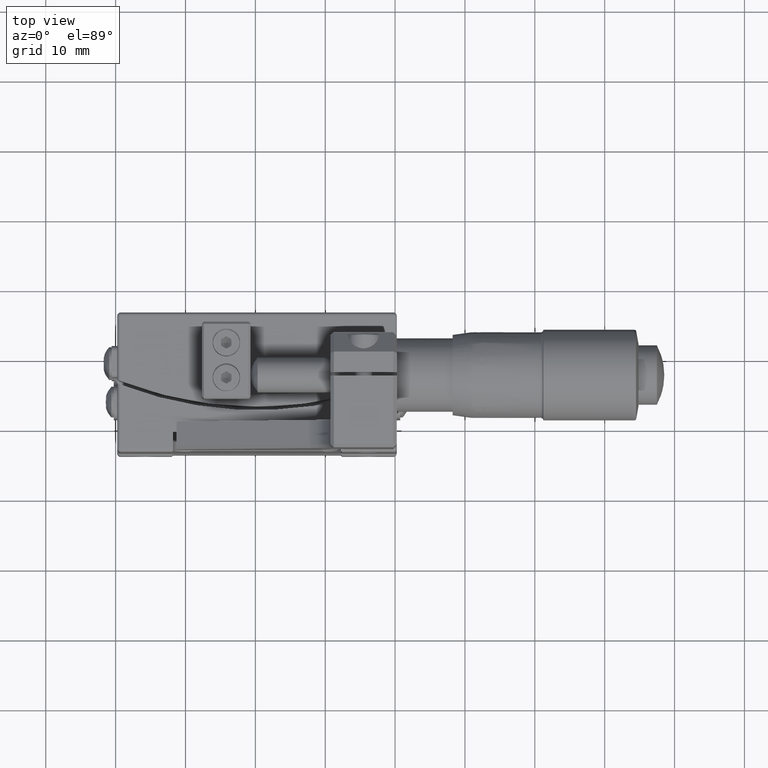
[diagram: clean part render]
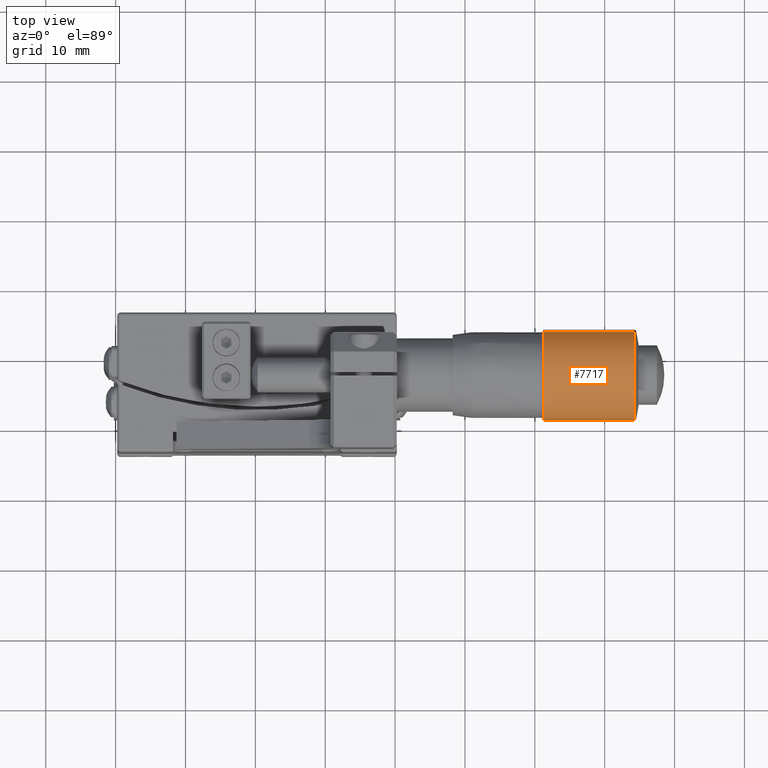
[diagram: same view with one face highlighted and labeled with its STEP entity id]
A machine part, top view. The second image highlights one B-rep face of the part: STEP entity #7717.
In plain terms, the highlighted cylindrical surface (partial cylindrical patch) has radius 6.5 mm, axis along (1, -0, -0).
Its self-contained STEP definition (entity closure, byte-faithful):
#1118 = DIRECTION ( 'NONE',  ( 1.000000000000000000, -2.359727993358414923E-16, -6.182898819248050451E-15 ) ) ;
#1243 = CARTESIAN_POINT ( 'NONE',  ( 54.22613712663869734, -9.085117701700031745, 25.19309545873329981 ) ) ;
#1391 = CYLINDRICAL_SURFACE ( 'NONE', #46756, 6.500000000000100364 ) ;
#4302 = EDGE_CURVE ( 'NONE', #33304, #36300, #15295, .T. ) ;
#5487 = CARTESIAN_POINT ( 'NONE',  ( 41.23052097740875155, -2.903250345781485109, 27.20170592217065320 ) ) ;
#7717 = ADVANCED_FACE ( 'NONE', ( #22386 ), #1391, .T. ) ;
#8275 = VECTOR ( 'NONE', #15773, 1000.000000000000000 ) ;
#8483 = CARTESIAN_POINT ( 'NONE',  ( 28.23052097740880129, 3.278617010137069965, 29.21031638560799948 ) ) ;
#8690 = LINE ( 'NONE', #41261, #40879 ) ;
#11869 = AXIS2_PLACEMENT_3D ( 'NONE', #5487, #38348, #30824 ) ;
#15295 = CIRCLE ( 'NONE', #11869, 6.500000000000089706 ) ;
#15773 = DIRECTION ( 'NONE',  ( 1.000000000000000000, -1.634266755230940136E-30, -6.106226608968620814E-15 ) ) ;
#15823 = EDGE_LOOP ( 'NONE', ( #38502, #31811, #32016, #40059 ) ) ;
#20337 = CARTESIAN_POINT ( 'NONE',  ( 54.22613712663869734, 3.278617010137089949, 29.21031638560785026 ) ) ;
#21691 = EDGE_CURVE ( 'NONE', #33304, #23925, #8690, .T. ) ;
#22386 = FACE_OUTER_BOUND ( 'NONE', #15823, .T. ) ;
#22647 = DIRECTION ( 'NONE',  ( -2.135044278125268211E-15, -0.9510565162951498674, -0.3090169943749586090 ) ) ;
#23925 = VERTEX_POINT ( 'NONE', #1243 ) ;
#24594 = DIRECTION ( 'NONE',  ( 1.000000000000000000, -1.634266755230940136E-30, -6.106226608968620814E-15 ) ) ;
#26680 = CIRCLE ( 'NONE', #40423, 6.500000000000098588 ) ;
#28160 = LINE ( 'NONE', #8483, #8275 ) ;
#29659 = CARTESIAN_POINT ( 'NONE',  ( 28.23052097740874800, -2.903250345781494879, 27.20170592217075267 ) ) ;
#30824 = DIRECTION ( 'NONE',  ( 2.135044278125271760E-15, 0.9510565162951499785, 0.3090169943749585535 ) ) ;
#31233 = DIRECTION ( 'NONE',  ( -1.000000000000000000, 2.359727993358414923E-16, 6.182898819248050451E-15 ) ) ;
#31811 = ORIENTED_EDGE ( 'NONE', *, *, #4302, .F. ) ;
#32016 = ORIENTED_EDGE ( 'NONE', *, *, #21691, .T. ) ;
#33304 = VERTEX_POINT ( 'NONE', #51977 ) ;
#36015 = CARTESIAN_POINT ( 'NONE',  ( 41.23052097740880129, 3.278617010137069965, 29.21031638560790000 ) ) ;
#36300 = VERTEX_POINT ( 'NONE', #36015 ) ;
#36718 = VERTEX_POINT ( 'NONE', #20337 ) ;
#38348 = DIRECTION ( 'NONE',  ( -1.000000000000000000, 2.359727993358414923E-16, 6.182898819248050451E-15 ) ) ;
#38502 = ORIENTED_EDGE ( 'NONE', *, *, #50574, .F. ) ;
#40059 = ORIENTED_EDGE ( 'NONE', *, *, #43209, .T. ) ;
#40423 = AXIS2_PLACEMENT_3D ( 'NONE', #44103, #31233, #48424 ) ;
#40879 = VECTOR ( 'NONE', #24594, 1000.000000000000000 ) ;
#41261 = CARTESIAN_POINT ( 'NONE',  ( 28.23052097740874800, -9.085117701700061943, 25.19309545873350231 ) ) ;
#43209 = EDGE_CURVE ( 'NONE', #23925, #36718, #26680, .T. ) ;
#44103 = CARTESIAN_POINT ( 'NONE',  ( 54.22613712663869734, -2.903250345781470010, 27.20170592217055017 ) ) ;
#46756 = AXIS2_PLACEMENT_3D ( 'NONE', #29659, #1118, #22647 ) ;
#48424 = DIRECTION ( 'NONE',  ( -2.135044278125268605E-15, -0.9510565162951499785, -0.3090169943749586645 ) ) ;
#50574 = EDGE_CURVE ( 'NONE', #36300, #36718, #28160, .T. ) ;
#51977 = CARTESIAN_POINT ( 'NONE',  ( 41.23052097740875155, -9.085117701700061943, 25.19309545873339928 ) ) ;